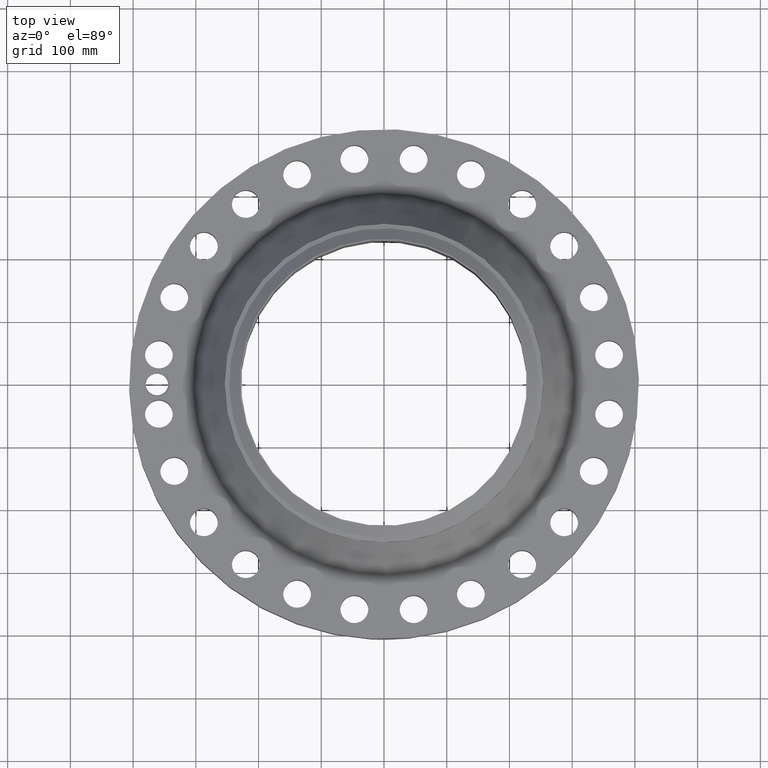
[diagram: clean part render]
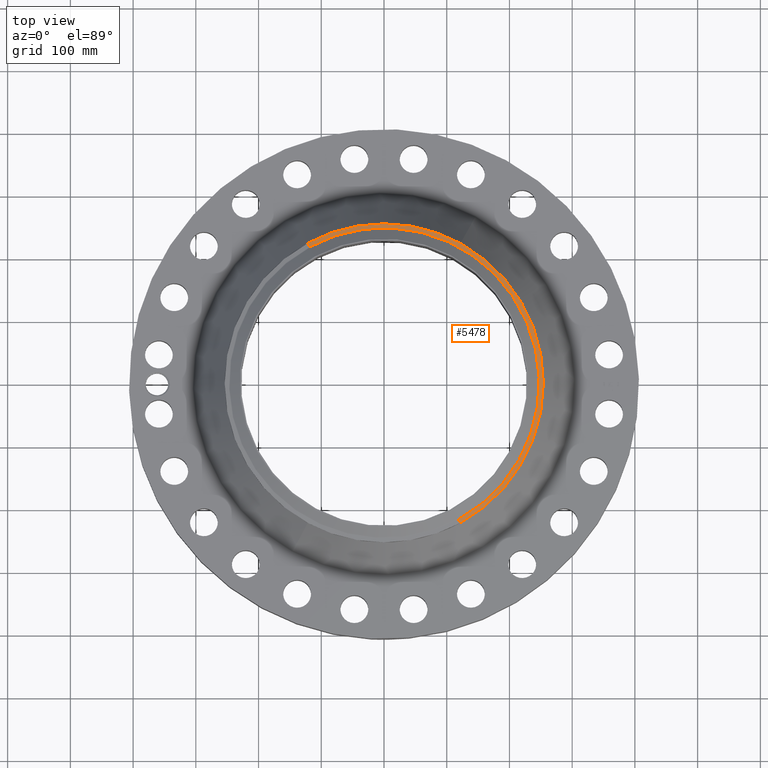
[diagram: same view with one face highlighted and labeled with its STEP entity id]
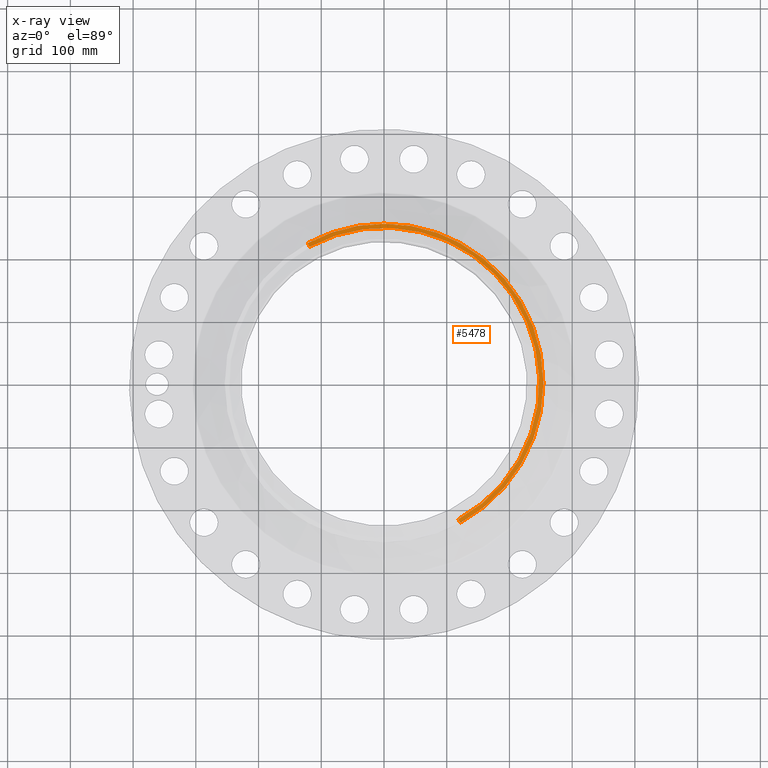
[diagram: x-ray of the same camera — body ghosted, the highlighted face saturated]
A machine part, top view. The second image highlights one B-rep face of the part: STEP entity #5478.
The next image is the same camera in x-ray: the body ghosted, the highlighted face saturated — about 0% of this face is hidden behind the body in this view.
In plain terms, the highlighted conical surface has half-angle 80 deg.
Its self-contained STEP definition (entity closure, byte-faithful):
#4272=AXIS2_PLACEMENT_3D('Circle Axis2P3D',#4270,#4271,$) ;
#4299=AXIS2_PLACEMENT_3D('Circle Axis2P3D',#4297,#4298,$) ;
#5450=AXIS2_PLACEMENT_3D('Cone Axis2P3D',#5447,#5448,#5449) ;
#5461=AXIS2_PLACEMENT_3D('Circle Axis2P3D',#5459,#5460,$) ;
#4267=CARTESIAN_POINT('Vertex',(4.79425538606,8.77582561894,7.18653971118)) ;
#4270=CARTESIAN_POINT('Axis2P3D Location',(0.,0.,7.18653971118)) ;
#4274=CARTESIAN_POINT('Vertex',(4.79425538606,-8.77582561894,7.18653971118)) ;
#4294=CARTESIAN_POINT('Vertex',(-4.79425538606,8.77582561894,7.18653971118)) ;
#4297=CARTESIAN_POINT('Axis2P3D Location',(0.,0.,7.18653971118)) ;
#5447=CARTESIAN_POINT('Axis2P3D Location',(0.,0.,7.23141601925)) ;
#5452=CARTESIAN_POINT('Line Origine',(-4.73324700243,8.66415052179,7.20897786521)) ;
#5456=CARTESIAN_POINT('Vertex',(-4.67223861881,8.55247542463,7.23141601925)) ;
#5459=CARTESIAN_POINT('Axis2P3D Location',(0.,0.,7.23141601925)) ;
#5463=CARTESIAN_POINT('Vertex',(4.67223861881,-8.55247542463,7.23141601925)) ;
#5466=CARTESIAN_POINT('Line Origine',(4.73324700243,-8.66415052179,7.20897786521)) ;
#4271=DIRECTION('Axis2P3D Direction',(0.,0.,-0.0393700787402)) ;
#4298=DIRECTION('Axis2P3D Direction',(0.,0.,-0.0393700787402)) ;
#5448=DIRECTION('Axis2P3D Direction',(-0.,-0.,-0.0393700787402)) ;
#5449=DIRECTION('Axis2P3D XDirection',(0.0188750212049,-0.0345504945626,0.)) ;
#5453=DIRECTION('Vector Direction',(-0.0185882672208,0.0340255949157,-0.00683654242783)) ;
#5460=DIRECTION('Axis2P3D Direction',(0.,0.,-0.0393700787402)) ;
#5467=DIRECTION('Vector Direction',(0.0185882672208,-0.0340255949157,-0.00683654242783)) ;
#5454=VECTOR('Line Direction',#5453,0.0393700787402) ;
#5468=VECTOR('Line Direction',#5467,0.0393700787402) ;
#5472=ORIENTED_EDGE('',*,*,#5458,.F.) ;
#5473=ORIENTED_EDGE('',*,*,#5465,.F.) ;
#5474=ORIENTED_EDGE('',*,*,#5470,.T.) ;
#5475=ORIENTED_EDGE('',*,*,#4276,.T.) ;
#5476=ORIENTED_EDGE('',*,*,#4301,.F.) ;
#5478=ADVANCED_FACE('PartBody',(#5477),#5451,.T.) ;
#4273=CIRCLE('generated circle',#4272,10.) ;
#4300=CIRCLE('generated circle',#4299,10.) ;
#5462=CIRCLE('generated circle',#5461,9.74549380996) ;
#5451=CONICAL_SURFACE('Cone',#5450,9.74549380996,1.3962634016) ;
#4276=EDGE_CURVE('',#4275,#4268,#4273,.F.) ;
#4301=EDGE_CURVE('',#4295,#4268,#4300,.T.) ;
#5458=EDGE_CURVE('',#5457,#4295,#5455,.T.) ;
#5465=EDGE_CURVE('',#5464,#5457,#5462,.F.) ;
#5470=EDGE_CURVE('',#5464,#4275,#5469,.T.) ;
#5471=EDGE_LOOP('',(#5472,#5473,#5474,#5475,#5476)) ;
#5477=FACE_OUTER_BOUND('',#5471,.T.) ;
#5455=LINE('Line',#5452,#5454) ;
#5469=LINE('Line',#5466,#5468) ;
#4268=VERTEX_POINT('',#4267) ;
#4275=VERTEX_POINT('',#4274) ;
#4295=VERTEX_POINT('',#4294) ;
#5457=VERTEX_POINT('',#5456) ;
#5464=VERTEX_POINT('',#5463) ;